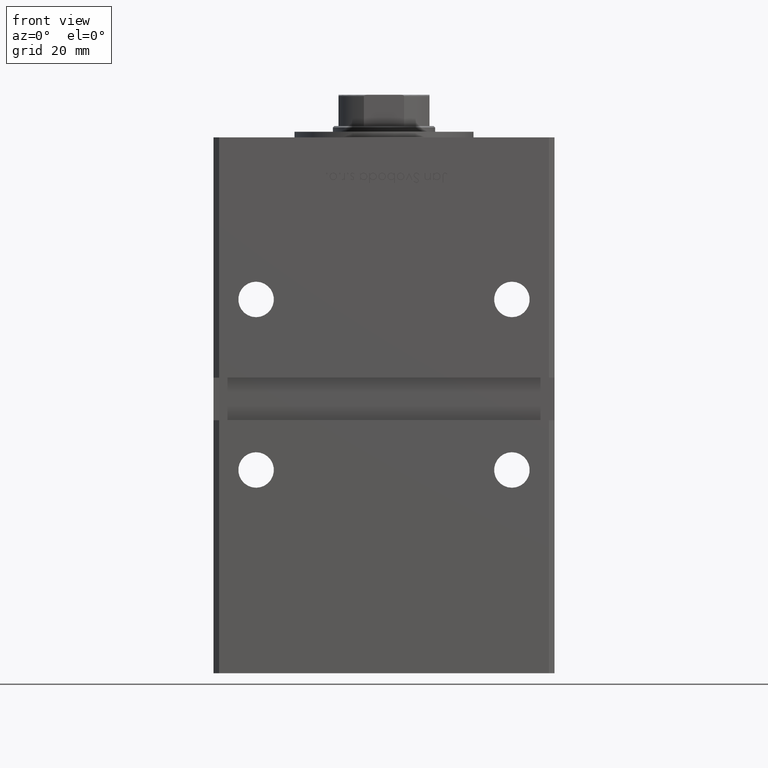
[diagram: clean part render]
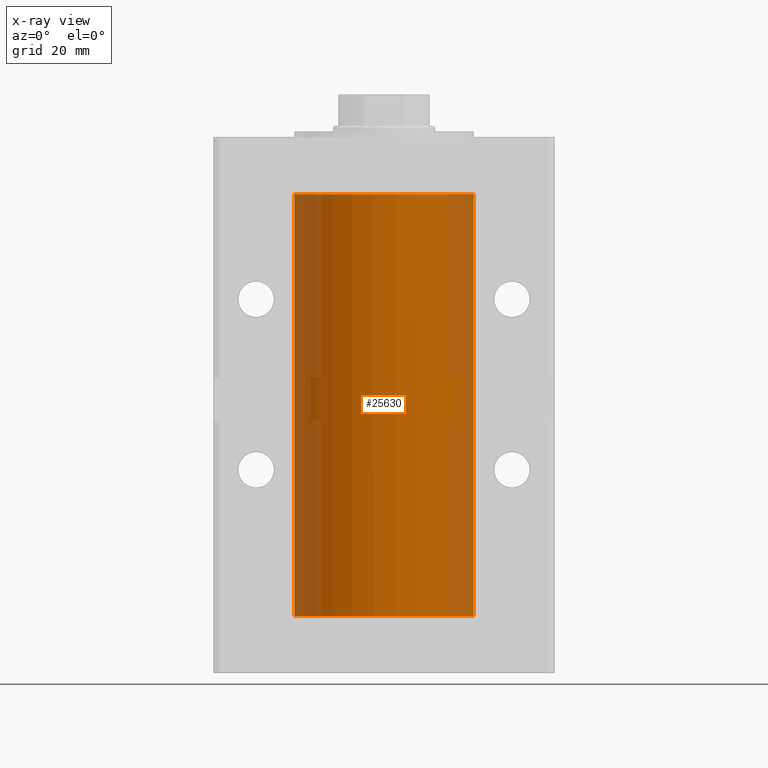
[diagram: x-ray — body ghosted, one internal face saturated and labeled with its STEP entity id]
A machine part, front view, then the same camera in x-ray: the body is ghosted and one INTERNAL B-rep face — a face not visible from any outside direction — is saturated and labeled: STEP entity #25630.
In plain terms, the highlighted cylindrical surface (partial cylindrical patch) has radius 31.5 mm, axis along (-0, -0, -1).
Its self-contained STEP definition (entity closure, byte-faithful):
#613 = AXIS2_PLACEMENT_3D ( 'NONE', #39080, #2336, #18967 ) ;
#2312 = CARTESIAN_POINT ( 'NONE',  ( 0.000000000000000000, 0.000000000000000000, 148.5000000000000000 ) ) ;
#2336 = DIRECTION ( 'NONE',  ( -0.000000000000000000, -0.000000000000000000, -1.000000000000000000 ) ) ;
#2730 = CIRCLE ( 'NONE', #10462, 31.50000000000000000 ) ;
#2792 = EDGE_CURVE ( 'NONE', #29278, #47225, #2730, .T. ) ;
#2897 = DIRECTION ( 'NONE',  ( -0.000000000000000000, 0.000000000000000000, 1.000000000000000000 ) ) ;
#5589 = CYLINDRICAL_SURFACE ( 'NONE', #613, 31.50000000000000000 ) ;
#8201 = AXIS2_PLACEMENT_3D ( 'NONE', #43682, #2897, #15494 ) ;
#10137 = VECTOR ( 'NONE', #47802, 1000.000000000000000 ) ;
#10462 = AXIS2_PLACEMENT_3D ( 'NONE', #2312, #51428, #38539 ) ;
#11829 = ORIENTED_EDGE ( 'NONE', *, *, #2792, .T. ) ;
#13369 = DIRECTION ( 'NONE',  ( -0.000000000000000000, -0.000000000000000000, -1.000000000000000000 ) ) ;
#15494 = DIRECTION ( 'NONE',  ( 1.000000000000000000, 0.000000000000000000, 0.000000000000000000 ) ) ;
#17379 = VERTEX_POINT ( 'NONE', #20977 ) ;
#17388 = CARTESIAN_POINT ( 'NONE',  ( -31.50000000000000000, 0.000000000000000000, 148.5000000000000000 ) ) ;
#18764 = EDGE_CURVE ( 'NONE', #36916, #17379, #28758, .T. ) ;
#18967 = DIRECTION ( 'NONE',  ( -1.000000000000000000, 0.000000000000000000, 0.000000000000000000 ) ) ;
#20977 = CARTESIAN_POINT ( 'NONE',  ( 31.50000000000000000, 3.857637417314162689E-15, 0.000000000000000000 ) ) ;
#21922 = ORIENTED_EDGE ( 'NONE', *, *, #45449, .T. ) ;
#22735 = FACE_OUTER_BOUND ( 'NONE', #29794, .T. ) ;
#25630 = ADVANCED_FACE ( 'NONE', ( #22735 ), #5589, .F. ) ;
#28758 = CIRCLE ( 'NONE', #8201, 31.50000000000000000 ) ;
#29200 = LINE ( 'NONE', #17388, #51160 ) ;
#29278 = VERTEX_POINT ( 'NONE', #47849 ) ;
#29794 = EDGE_LOOP ( 'NONE', ( #11829, #21922, #44970, #51048 ) ) ;
#36916 = VERTEX_POINT ( 'NONE', #40601 ) ;
#38539 = DIRECTION ( 'NONE',  ( 1.000000000000000000, 0.000000000000000000, 0.000000000000000000 ) ) ;
#39080 = CARTESIAN_POINT ( 'NONE',  ( 0.000000000000000000, 0.000000000000000000, 148.5000000000000000 ) ) ;
#40601 = CARTESIAN_POINT ( 'NONE',  ( -31.50000000000000000, 0.000000000000000000, 0.000000000000000000 ) ) ;
#42335 = EDGE_CURVE ( 'NONE', #29278, #36916, #29200, .T. ) ;
#43682 = CARTESIAN_POINT ( 'NONE',  ( 0.000000000000000000, 0.000000000000000000, 0.000000000000000000 ) ) ;
#44970 = ORIENTED_EDGE ( 'NONE', *, *, #18764, .F. ) ;
#45449 = EDGE_CURVE ( 'NONE', #47225, #17379, #51824, .T. ) ;
#47001 = CARTESIAN_POINT ( 'NONE',  ( 31.50000000000000000, 3.857637417314162689E-15, 148.5000000000000000 ) ) ;
#47225 = VERTEX_POINT ( 'NONE', #52888 ) ;
#47802 = DIRECTION ( 'NONE',  ( -0.000000000000000000, -0.000000000000000000, -1.000000000000000000 ) ) ;
#47849 = CARTESIAN_POINT ( 'NONE',  ( -31.50000000000000000, 0.000000000000000000, 148.5000000000000000 ) ) ;
#51048 = ORIENTED_EDGE ( 'NONE', *, *, #42335, .F. ) ;
#51160 = VECTOR ( 'NONE', #13369, 1000.000000000000000 ) ;
#51428 = DIRECTION ( 'NONE',  ( -0.000000000000000000, 0.000000000000000000, 1.000000000000000000 ) ) ;
#51824 = LINE ( 'NONE', #47001, #10137 ) ;
#52888 = CARTESIAN_POINT ( 'NONE',  ( 31.50000000000000000, 3.857637417314162689E-15, 148.5000000000000000 ) ) ;